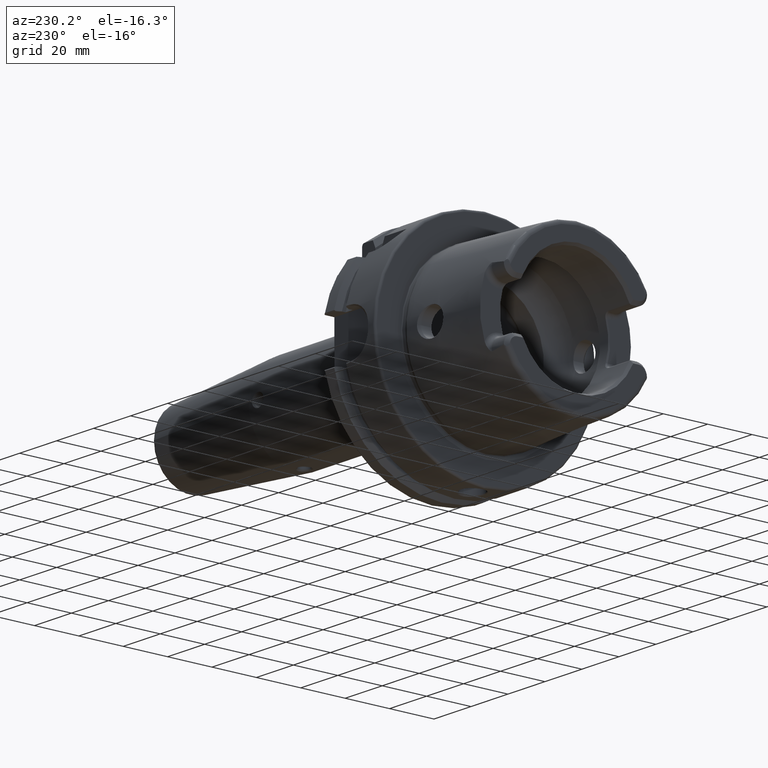
[diagram: clean part render]
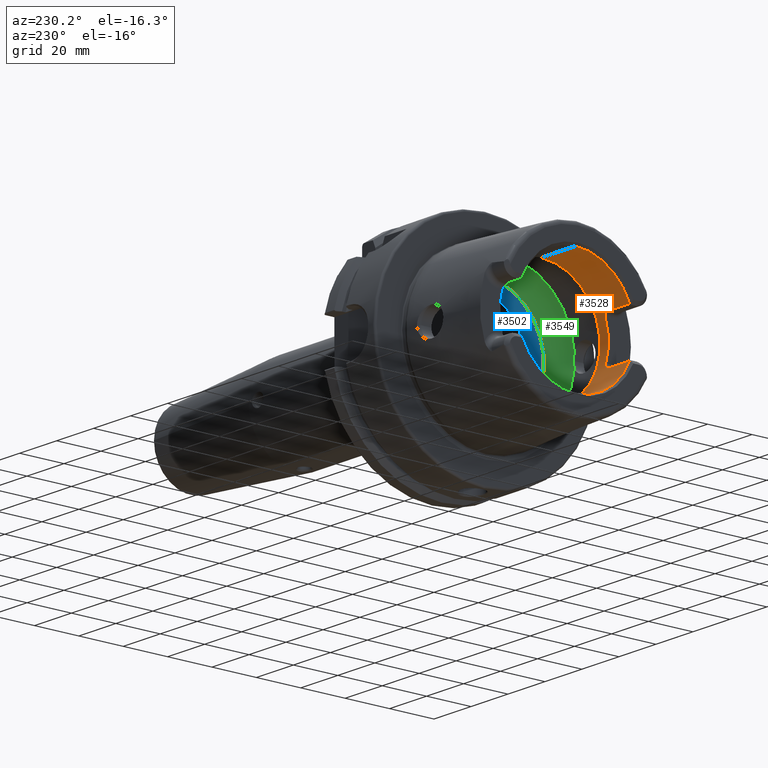
[diagram: same view with three faces highlighted in distinct colors, each labeled with its STEP entity id]
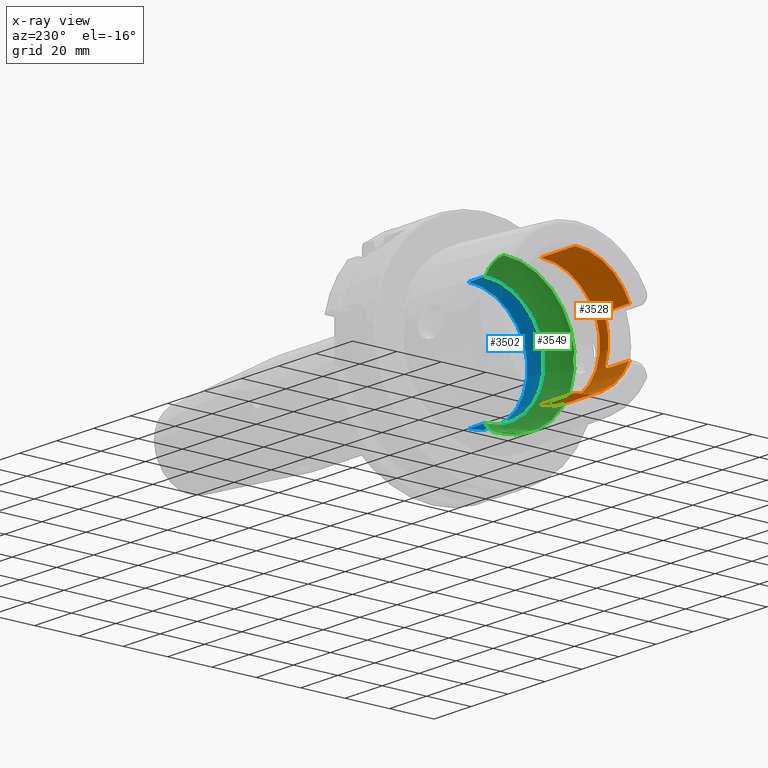
[diagram: x-ray of the same camera — body ghosted, the three highlighted faces saturated]
A machine part, auxiliary view with three faces highlighted in distinct colors.
The next image is the same camera in x-ray (body ghosted, the three faces saturated) — at least one of them is partly hidden behind the body in this view.
Their STEP definitions:

[orange] entity #3528 — the highlighted cylindrical surface (partial cylindrical patch) has radius 26.5 mm, axis along (1, 0, 0).
#303=CARTESIAN_POINT('',(-4.85E1,0.E0,0.E0));
#304=DIRECTION('',(1.E0,0.E0,0.E0));
#305=DIRECTION('',(0.E0,-9.211282370446E-1,-3.892592592593E-1));
#306=AXIS2_PLACEMENT_3D('',#303,#304,#305);
#308=DIRECTION('',(-1.E0,-5.551588003877E-9,2.922803554237E-11));
#309=VECTOR('',#308,1.849662432609E1);
#310=CARTESIAN_POINT('',(-3.000337567297E1,0.E0,-2.65E1));
#311=LINE('',#310,#309);
#312=CARTESIAN_POINT('',(-3.000337567297E1,0.E0,0.E0));
#313=DIRECTION('',(1.E0,0.E0,0.E0));
#314=DIRECTION('',(0.E0,0.E0,1.E0));
#315=AXIS2_PLACEMENT_3D('',#312,#313,#314);
#317=DIRECTION('',(-1.E0,5.551588026347E-9,-2.922649895337E-11));
#318=VECTOR('',#317,1.849662432609E1);
#319=CARTESIAN_POINT('',(-3.000337567297E1,0.E0,2.65E1));
#320=LINE('',#319,#318);
#321=CARTESIAN_POINT('',(-4.85E1,0.E0,0.E0));
#322=DIRECTION('',(1.E0,0.E0,0.E0));
#323=DIRECTION('',(0.E0,0.E0,1.E0));
#324=AXIS2_PLACEMENT_3D('',#321,#322,#323);
#326=DIRECTION('',(-1.E0,3.226420120565E-11,5.697409734915E-11));
#327=VECTOR('',#326,1.149999991698E1);
#328=CARTESIAN_POINT('',(-3.700000008300E1,-2.440989828204E1,1.031537036972E1));
#329=LINE('',#328,#327);
#330=CARTESIAN_POINT('',(-3.449999998651E1,-2.530699846500E1,7.861668321341E0));
#331=CARTESIAN_POINT('',(-3.449795011958E1,-2.523759929115E1,8.085066857051E0));
#332=CARTESIAN_POINT('',(-3.456021542581E1,-2.509785564659E1,8.514631971724E0));
#333=CARTESIAN_POINT('',(-3.482630285811E1,-2.487849543461E1,9.134382792455E0));
#334=CARTESIAN_POINT('',(-3.524644241061E1,-2.468204294199E1,9.650097295361E0));
#335=CARTESIAN_POINT('',(-3.577785285832E1,-2.452731871794E1,1.003478934780E1));
#336=CARTESIAN_POINT('',(-3.638766783458E1,-2.443056876952E1,1.026668682524E1));
#337=CARTESIAN_POINT('',(-3.679311128597E1,-2.440929933694E1,1.031678769054E1));
#338=CARTESIAN_POINT('',(-3.700000008300E1,-2.440989828204E1,1.031537036972E1));
#340=CARTESIAN_POINT('',(-3.45E1,0.E0,0.E0));
#341=DIRECTION('',(-1.E0,0.E0,0.E0));
#342=DIRECTION('',(0.E0,-9.549810934720E-1,-2.966666666667E-1));
#343=AXIS2_PLACEMENT_3D('',#340,#341,#342);
#345=CARTESIAN_POINT('',(-3.700000016220E1,-2.440989828213E1,
-1.031537036967E1));
#346=CARTESIAN_POINT('',(-3.678858779585E1,-2.440959239456E1,
-1.031609421035E1));
#347=CARTESIAN_POINT('',(-3.637701059267E1,-2.443150404043E1,
-1.026447856370E1));
#348=CARTESIAN_POINT('',(-3.577240070331E1,-2.452879080341E1,
-1.003118157757E1));
#349=CARTESIAN_POINT('',(-3.524355850821E1,-2.468306308929E1,
-9.647504754595E0));
#350=CARTESIAN_POINT('',(-3.482283577083E1,-2.488050256782E1,
-9.128971951032E0));
#351=CARTESIAN_POINT('',(-3.455897743123E1,-2.509969767947E1,
-8.509135686152E0));
#352=CARTESIAN_POINT('',(-3.449793394971E1,-2.523831739929E1,
-8.082755236989E0));
#353=CARTESIAN_POINT('',(-3.449999999063E1,-2.530699864113E1,
-7.861667751238E0));
#355=DIRECTION('',(1.E0,-3.969833213848E-11,6.107856335907E-11));
#356=VECTOR('',#355,1.149999983779E1);
#357=CARTESIAN_POINT('',(-4.85E1,-2.440989828168E1,-1.031537037037E1));
#358=LINE('',#357,#356);
#2782=CARTESIAN_POINT('',(-3.000337567297E1,0.E0,-2.65E1));
#2783=CARTESIAN_POINT('',(-3.000337567297E1,0.E0,2.65E1));
#2784=VERTEX_POINT('',#2782);
#2785=VERTEX_POINT('',#2783);
#2973=VERTEX_POINT('',#330);
#2974=VERTEX_POINT('',#338);
#2977=CARTESIAN_POINT('',(-3.45E1,-2.530699897701E1,-7.861666666667E0));
#2978=VERTEX_POINT('',#2977);
#2981=VERTEX_POINT('',#345);
#2983=CARTESIAN_POINT('',(-4.85E1,0.E0,-2.65E1));
#2985=VERTEX_POINT('',#2983);
#2987=CARTESIAN_POINT('',(-4.85E1,-2.440989828168E1,-1.031537037037E1));
#2988=VERTEX_POINT('',#2987);
#2989=CARTESIAN_POINT('',(-4.85E1,0.E0,2.65E1));
#2990=CARTESIAN_POINT('',(-4.85E1,-2.440989828168E1,1.031537037037E1));
#2991=VERTEX_POINT('',#2989);
#2992=VERTEX_POINT('',#2990);
#3503=CARTESIAN_POINT('',(0.E0,0.E0,0.E0));
#3504=DIRECTION('',(1.E0,0.E0,0.E0));
#3505=DIRECTION('',(0.E0,0.E0,1.E0));
#3506=AXIS2_PLACEMENT_3D('',#3503,#3504,#3505);
#3507=CYLINDRICAL_SURFACE('',#3506,2.65E1);
#3509=ORIENTED_EDGE('',*,*,#3508,.T.);
#3510=ORIENTED_EDGE('',*,*,#3484,.F.);
#3512=ORIENTED_EDGE('',*,*,#3511,.F.);
#3513=ORIENTED_EDGE('',*,*,#3480,.T.);
#3515=ORIENTED_EDGE('',*,*,#3514,.T.);
#3517=ORIENTED_EDGE('',*,*,#3516,.F.);
#3519=ORIENTED_EDGE('',*,*,#3518,.F.);
#3521=ORIENTED_EDGE('',*,*,#3520,.F.);
#3523=ORIENTED_EDGE('',*,*,#3522,.F.);
#3525=ORIENTED_EDGE('',*,*,#3524,.F.);
#3526=EDGE_LOOP('',(#3509,#3510,#3512,#3513,#3515,#3517,#3519,#3521,#3523,
#3525));
#3527=FACE_OUTER_BOUND('',#3526,.F.);
#3528=ADVANCED_FACE('',(#3527),#3507,.F.);
#307=CIRCLE('',#306,2.65E1);
#316=CIRCLE('',#315,2.65E1);
#325=CIRCLE('',#324,2.65E1);
#339=B_SPLINE_CURVE_WITH_KNOTS('',3,(#330,#331,#332,#333,#334,#335,#336,#337,
#338),.UNSPECIFIED.,.F.,.F.,(4,1,1,1,1,1,4),(0.E0,1.666666666667E-1,
3.333333333333E-1,5.E-1,6.666666666667E-1,8.333333333333E-1,1.E0),
.UNSPECIFIED.);
#344=CIRCLE('',#343,2.65E1);
#354=B_SPLINE_CURVE_WITH_KNOTS('',3,(#345,#346,#347,#348,#349,#350,#351,#352,
#353),.UNSPECIFIED.,.F.,.F.,(4,1,1,1,1,1,4),(0.E0,1.666666666667E-1,
3.333333333333E-1,5.E-1,6.666666666667E-1,8.333333333333E-1,1.E0),
.UNSPECIFIED.);
#3480=EDGE_CURVE('',#2785,#2991,#320,.T.);
#3484=EDGE_CURVE('',#2784,#2985,#311,.T.);
#3508=EDGE_CURVE('',#2988,#2985,#307,.T.);
#3511=EDGE_CURVE('',#2785,#2784,#316,.T.);
#3514=EDGE_CURVE('',#2991,#2992,#325,.T.);
#3516=EDGE_CURVE('',#2974,#2992,#329,.T.);
#3518=EDGE_CURVE('',#2973,#2974,#339,.T.);
#3520=EDGE_CURVE('',#2978,#2973,#344,.T.);
#3522=EDGE_CURVE('',#2981,#2978,#354,.T.);
#3524=EDGE_CURVE('',#2988,#2981,#358,.T.);

[blue] entity #3502 — the highlighted cylindrical surface (partial cylindrical patch) has radius 26.5 mm, axis along (1, 0, 0).
#285=DIRECTION('',(-1.E0,0.E0,0.E0));
#286=VECTOR('',#285,8.974018844609E0);
#287=CARTESIAN_POINT('',(9.3E0,0.E0,2.65E1));
#288=LINE('',#287,#286);
#289=CARTESIAN_POINT('',(3.259811553909E-1,0.E0,0.E0));
#290=DIRECTION('',(1.E0,0.E0,0.E0));
#291=DIRECTION('',(0.E0,0.E0,1.E0));
#292=AXIS2_PLACEMENT_3D('',#289,#290,#291);
#294=DIRECTION('',(-1.E0,0.E0,0.E0));
#295=VECTOR('',#294,8.974018844609E0);
#296=CARTESIAN_POINT('',(9.3E0,0.E0,-2.65E1));
#297=LINE('',#296,#295);
#298=CARTESIAN_POINT('',(9.3E0,0.E0,0.E0));
#299=DIRECTION('',(1.E0,0.E0,0.E0));
#300=DIRECTION('',(0.E0,0.E0,1.E0));
#301=AXIS2_PLACEMENT_3D('',#298,#299,#300);
#2786=CARTESIAN_POINT('',(3.259811553909E-1,0.E0,-2.65E1));
#2787=CARTESIAN_POINT('',(3.259811553909E-1,0.E0,2.65E1));
#2788=VERTEX_POINT('',#2786);
#2789=VERTEX_POINT('',#2787);
#2798=CARTESIAN_POINT('',(9.3E0,0.E0,-2.65E1));
#2799=CARTESIAN_POINT('',(9.3E0,0.E0,2.65E1));
#2800=VERTEX_POINT('',#2798);
#2801=VERTEX_POINT('',#2799);
#3489=CARTESIAN_POINT('',(0.E0,0.E0,0.E0));
#3490=DIRECTION('',(1.E0,0.E0,0.E0));
#3491=DIRECTION('',(0.E0,0.E0,1.E0));
#3492=AXIS2_PLACEMENT_3D('',#3489,#3490,#3491);
#3493=CYLINDRICAL_SURFACE('',#3492,2.65E1);
#3494=ORIENTED_EDGE('',*,*,#3455,.T.);
#3496=ORIENTED_EDGE('',*,*,#3495,.T.);
#3497=ORIENTED_EDGE('',*,*,#3451,.F.);
#3499=ORIENTED_EDGE('',*,*,#3498,.F.);
#3500=EDGE_LOOP('',(#3494,#3496,#3497,#3499));
#3501=FACE_OUTER_BOUND('',#3500,.F.);
#3502=ADVANCED_FACE('',(#3501),#3493,.F.);
#293=CIRCLE('',#292,2.65E1);
#302=CIRCLE('',#301,2.65E1);
#3451=EDGE_CURVE('',#2800,#2788,#297,.T.);
#3455=EDGE_CURVE('',#2801,#2789,#288,.T.);
#3495=EDGE_CURVE('',#2789,#2788,#293,.T.);
#3498=EDGE_CURVE('',#2801,#2800,#302,.T.);

[green] entity #3549 — the highlighted toroidal blend (fillet) surface has major radius 19.9778 mm and minor (blend) radius 12 mm.
#289=CARTESIAN_POINT('',(3.259811553909E-1,0.E0,0.E0));
#290=DIRECTION('',(1.E0,0.E0,0.E0));
#291=DIRECTION('',(0.E0,0.E0,1.E0));
#292=AXIS2_PLACEMENT_3D('',#289,#290,#291);
#359=CARTESIAN_POINT('',(-9.7468E0,-3.184612797556E1,-2.898946318923E0));
#360=CARTESIAN_POINT('',(-9.585175880117E0,-3.187278879370E1,
-2.606066171047E0));
#361=CARTESIAN_POINT('',(-9.310459572189E0,-3.191400600196E1,
-1.992066362112E0));
#362=CARTESIAN_POINT('',(-9.057330735008E0,-3.194747841027E1,
-1.013009017261E0));
#363=CARTESIAN_POINT('',(-9.E0,-3.195454052960E1,-3.381119242272E-1));
#364=CARTESIAN_POINT('',(-9.E0,-3.195454052960E1,0.E0));
#366=CARTESIAN_POINT('',(-9.7468E0,0.E0,-1.9977801E1));
#367=DIRECTION('',(0.E0,1.E0,0.E0));
#368=DIRECTION('',(8.393984296159E-1,0.E0,-5.435165833333E-1));
#369=AXIS2_PLACEMENT_3D('',#366,#367,#368);
#371=CARTESIAN_POINT('',(-9.7468E0,0.E0,1.9977801E1));
#372=DIRECTION('',(0.E0,-1.E0,0.E0));
#373=DIRECTION('',(8.393984296159E-1,0.E0,5.435165833333E-1));
#374=AXIS2_PLACEMENT_3D('',#371,#372,#373);
#376=CARTESIAN_POINT('',(-9.E0,-3.195454052960E1,0.E0));
#377=CARTESIAN_POINT('',(-9.E0,-3.195454052960E1,3.380482648301E-1));
#378=CARTESIAN_POINT('',(-9.057312584844E0,-3.194748055750E1,1.012859366110E0));
#379=CARTESIAN_POINT('',(-9.310379938408E0,-3.191401708557E1,1.991845080032E0));
#380=CARTESIAN_POINT('',(-9.585127357174E0,-3.187279679784E1,2.605978242298E0));
#381=CARTESIAN_POINT('',(-9.7468E0,-3.184612797556E1,2.898946318923E0));
#500=CARTESIAN_POINT('',(-9.7468E0,-3.184612797556E1,-2.898946318923E0));
#502=CARTESIAN_POINT('',(-9.7468E0,-3.184612797556E1,2.898946318923E0));
#519=CARTESIAN_POINT('',(-9.7468E0,0.E0,0.E0));
#520=DIRECTION('',(1.E0,0.E0,0.E0));
#521=DIRECTION('',(0.E0,0.E0,1.E0));
#522=AXIS2_PLACEMENT_3D('',#519,#520,#521);
#532=CARTESIAN_POINT('',(-9.7468E0,0.E0,0.E0));
#533=DIRECTION('',(1.E0,0.E0,0.E0));
#534=DIRECTION('',(0.E0,-9.958823615031E-1,-9.065496151294E-2));
#535=AXIS2_PLACEMENT_3D('',#532,#533,#534);
#2786=CARTESIAN_POINT('',(3.259811553909E-1,0.E0,-2.65E1));
#2787=CARTESIAN_POINT('',(3.259811553909E-1,0.E0,2.65E1));
#2788=VERTEX_POINT('',#2786);
#2789=VERTEX_POINT('',#2787);
#2790=CARTESIAN_POINT('',(-9.7468E0,0.E0,-3.1977801E1));
#2791=VERTEX_POINT('',#2790);
#2792=CARTESIAN_POINT('',(-9.7468E0,0.E0,3.1977801E1));
#2793=VERTEX_POINT('',#2792);
#3075=VERTEX_POINT('',#500);
#3076=VERTEX_POINT('',#502);
#3078=VERTEX_POINT('',#364);
#3529=CARTESIAN_POINT('',(-9.7468E0,0.E0,0.E0));
#3530=DIRECTION('',(1.E0,0.E0,0.E0));
#3531=DIRECTION('',(0.E0,0.E0,1.E0));
#3532=AXIS2_PLACEMENT_3D('',#3529,#3530,#3531);
#3533=TOROIDAL_SURFACE('',#3532,1.9977801E1,1.2E1);
#3535=ORIENTED_EDGE('',*,*,#3534,.F.);
#3537=ORIENTED_EDGE('',*,*,#3536,.T.);
#3539=ORIENTED_EDGE('',*,*,#3538,.F.);
#3540=ORIENTED_EDGE('',*,*,#3495,.F.);
#3542=ORIENTED_EDGE('',*,*,#3541,.T.);
#3544=ORIENTED_EDGE('',*,*,#3543,.T.);
#3546=ORIENTED_EDGE('',*,*,#3545,.F.);
#3547=EDGE_LOOP('',(#3535,#3537,#3539,#3540,#3542,#3544,#3546));
#3548=FACE_OUTER_BOUND('',#3547,.F.);
#3549=ADVANCED_FACE('',(#3548),#3533,.F.);
#293=CIRCLE('',#292,2.65E1);
#365=B_SPLINE_CURVE_WITH_KNOTS('',3,(#359,#360,#361,#362,#363,#364),
.UNSPECIFIED.,.F.,.F.,(4,1,1,4),(0.E0,3.333333333333E-1,6.666666666667E-1,1.E0),
.UNSPECIFIED.);
#370=CIRCLE('',#369,1.2E1);
#375=CIRCLE('',#374,1.2E1);
#382=B_SPLINE_CURVE_WITH_KNOTS('',3,(#376,#377,#378,#379,#380,#381),
.UNSPECIFIED.,.F.,.F.,(4,1,1,4),(0.E0,3.333333333333E-1,6.666666666667E-1,1.E0),
.UNSPECIFIED.);
#523=CIRCLE('',#522,3.1977801E1);
#536=CIRCLE('',#535,3.1977801E1);
#3495=EDGE_CURVE('',#2789,#2788,#293,.T.);
#3534=EDGE_CURVE('',#3075,#3078,#365,.T.);
#3536=EDGE_CURVE('',#3075,#2791,#536,.T.);
#3538=EDGE_CURVE('',#2788,#2791,#370,.T.);
#3541=EDGE_CURVE('',#2789,#2793,#375,.T.);
#3543=EDGE_CURVE('',#2793,#3076,#523,.T.);
#3545=EDGE_CURVE('',#3078,#3076,#382,.T.);